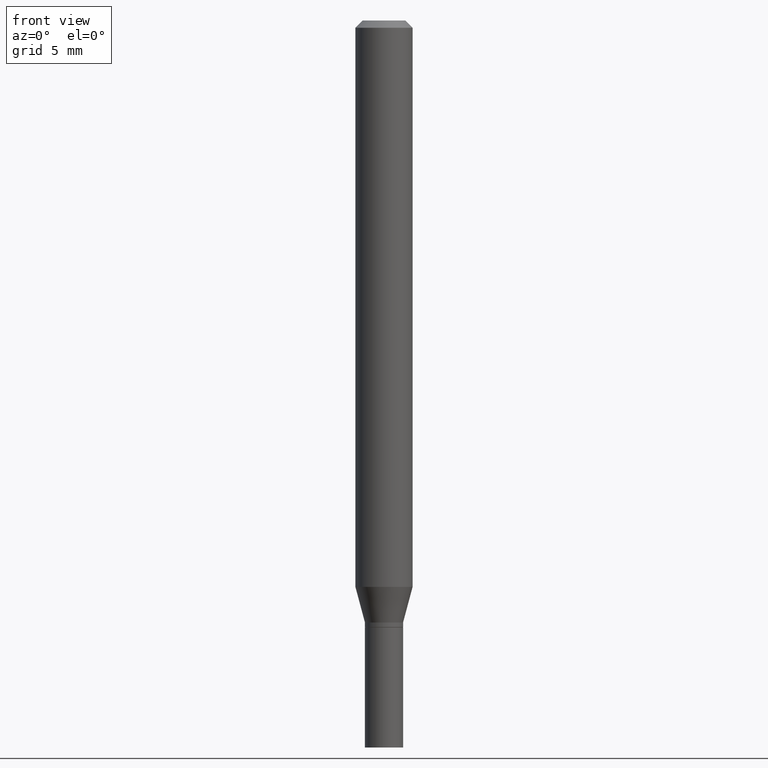
[diagram: clean part render]
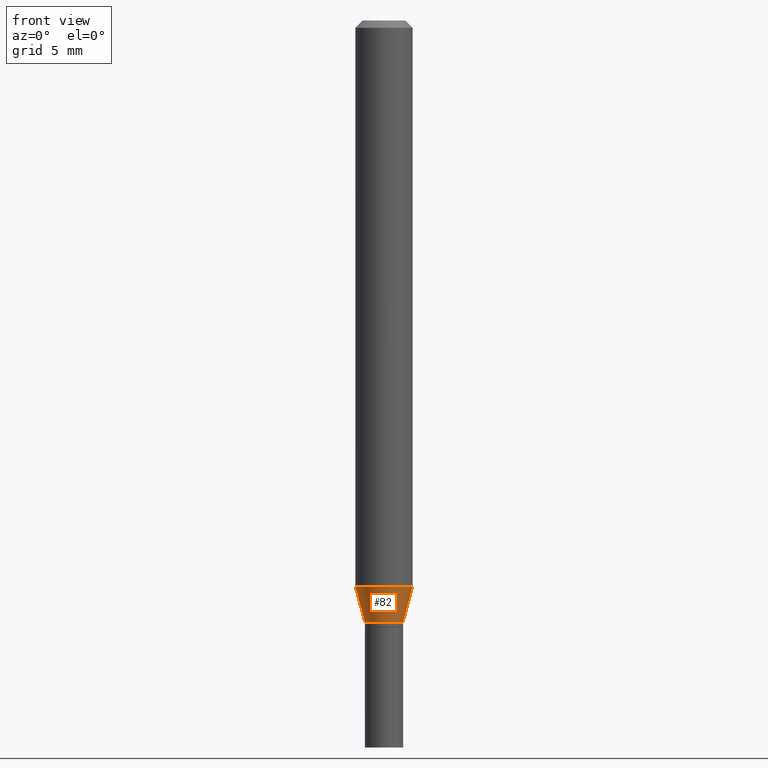
[diagram: same view with one face highlighted and labeled with its STEP entity id]
A machine part, front view. The second image highlights one B-rep face of the part: STEP entity #82.
In plain terms, the highlighted conical surface has half-angle 15 deg.
Its self-contained STEP definition (entity closure, byte-faithful):
#1 = VERTEX_POINT ( 'NONE', #180 ) ;
#6 = CARTESIAN_POINT ( 'NONE',  ( 3.037272257281939846E-29, -4.336419822843186836E-15, -1.241999999999999993 ) ) ;
#11 = CARTESIAN_POINT ( 'NONE',  ( 0.03934999999999993364, -4.611199404210140965E-15, -1.241999999999999993 ) ) ;
#44 = VECTOR ( 'NONE', #321, 39.37007874015748143 ) ;
#50 = CIRCLE ( 'NONE', #167, 0.05904999999999999832 ) ;
#61 = DIRECTION ( 'NONE',  ( 1.000000000000000000, -6.982962677686273021E-15, 0.000000000000000000 ) ) ;
#82 = ADVANCED_FACE ( 'NONE', ( #109 ), #420, .T. ) ;
#84 = ORIENTED_EDGE ( 'NONE', *, *, #297, .T. ) ;
#87 = VERTEX_POINT ( 'NONE', #394 ) ;
#89 = AXIS2_PLACEMENT_3D ( 'NONE', #6, #142, #465 ) ;
#98 = DIRECTION ( 'NONE',  ( 1.000000000000000000, -6.982962677686269077E-15, 0.000000000000000000 ) ) ;
#103 = ORIENTED_EDGE ( 'NONE', *, *, #337, .T. ) ;
#109 = FACE_OUTER_BOUND ( 'NONE', #371, .T. ) ;
#130 = CARTESIAN_POINT ( 'NONE',  ( 0.05904999999999999832, -4.492065169680809250E-15, -1.168478599090893244 ) ) ;
#132 = CARTESIAN_POINT ( 'NONE',  ( -0.03934999999999993364, -3.858483497209341928E-15, -1.241999999999999993 ) ) ;
#142 = DIRECTION ( 'NONE',  ( -2.445468806185136597E-29, 3.491481338843145583E-15, 1.000000000000000000 ) ) ;
#143 = VERTEX_POINT ( 'NONE', #130 ) ;
#160 = DIRECTION ( 'NONE',  ( -2.445468806185136597E-29, 3.491481338843145583E-15, 1.000000000000000000 ) ) ;
#167 = AXIS2_PLACEMENT_3D ( 'NONE', #214, #160, #61 ) ;
#180 = CARTESIAN_POINT ( 'NONE',  ( -0.05904999999999999832, -3.660145738097095626E-15, -1.168478599090893244 ) ) ;
#183 = LINE ( 'NONE', #11, #44 ) ;
#192 = CARTESIAN_POINT ( 'NONE',  ( 3.037272257281939846E-29, -4.336419822843186836E-15, -1.241999999999999993 ) ) ;
#205 = AXIS2_PLACEMENT_3D ( 'NONE', #192, #344, #98 ) ;
#214 = CARTESIAN_POINT ( 'NONE',  ( 2.857477964771687293E-29, -4.079721223563434330E-15, -1.168478599090893244 ) ) ;
#259 = CIRCLE ( 'NONE', #205, 0.03934999999999993364 ) ;
#263 = EDGE_CURVE ( 'NONE', #1, #143, #50, .T. ) ;
#267 = VECTOR ( 'NONE', #457, 39.37007874015748143 ) ;
#271 = LINE ( 'NONE', #413, #267 ) ;
#285 = ORIENTED_EDGE ( 'NONE', *, *, #263, .F. ) ;
#297 = EDGE_CURVE ( 'NONE', #414, #87, #259, .T. ) ;
#321 = DIRECTION ( 'NONE',  ( 0.2588190451025215721, 1.565188264969619995E-15, 0.9659258262890679791 ) ) ;
#337 = EDGE_CURVE ( 'NONE', #87, #143, #183, .T. ) ;
#344 = DIRECTION ( 'NONE',  ( -2.445468806185136597E-29, 3.491481338843145583E-15, 1.000000000000000000 ) ) ;
#371 = EDGE_LOOP ( 'NONE', ( #402, #84, #103, #285 ) ) ;
#381 = EDGE_CURVE ( 'NONE', #414, #1, #271, .T. ) ;
#394 = CARTESIAN_POINT ( 'NONE',  ( 0.03934999999999993364, -4.611199404210140965E-15, -1.241999999999999993 ) ) ;
#402 = ORIENTED_EDGE ( 'NONE', *, *, #381, .F. ) ;
#413 = CARTESIAN_POINT ( 'NONE',  ( -0.03934999999999993364, -4.056821256321588230E-15, -1.241999999999999993 ) ) ;
#414 = VERTEX_POINT ( 'NONE', #132 ) ;
#420 = CONICAL_SURFACE ( 'NONE', #89, 0.03934999999999993364, 0.2617993877991502960 ) ;
#457 = DIRECTION ( 'NONE',  ( -0.2588190451025215721, 5.211531920934551831E-15, 0.9659258262890679791 ) ) ;
#465 = DIRECTION ( 'NONE',  ( 1.000000000000000000, -6.982962677686269077E-15, 0.000000000000000000 ) ) ;